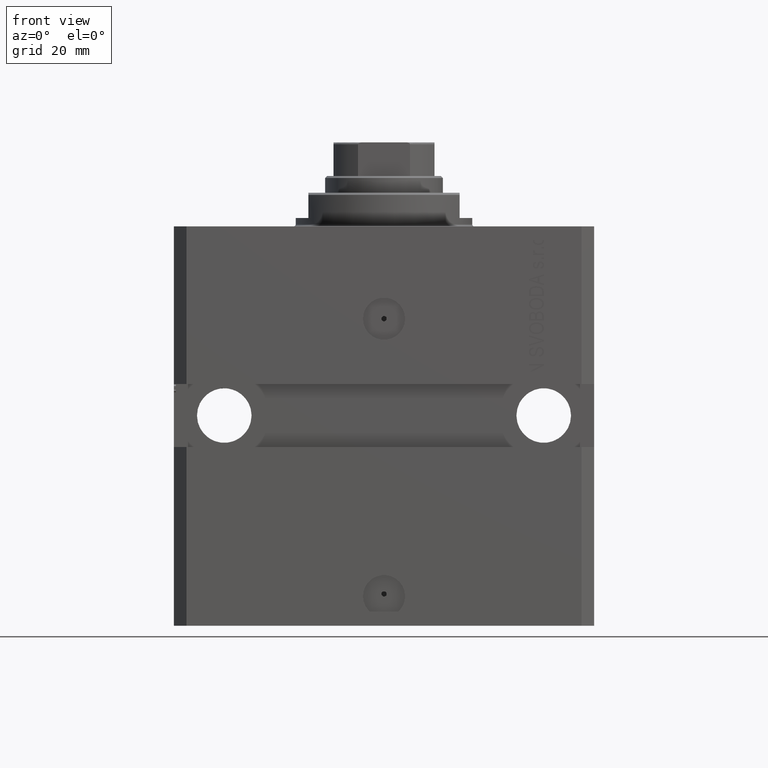
[diagram: clean part render]
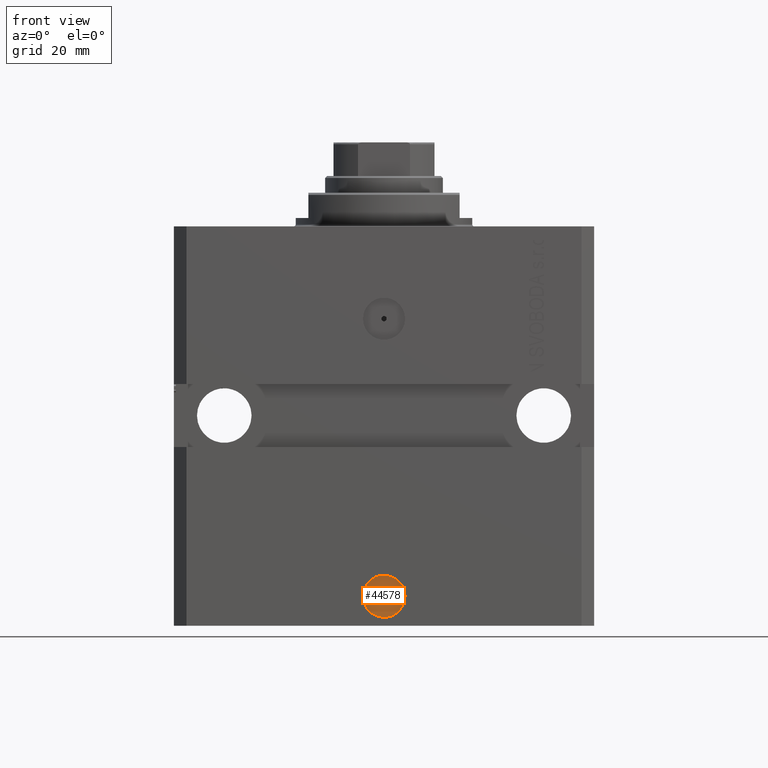
[diagram: same view with one face highlighted and labeled with its STEP entity id]
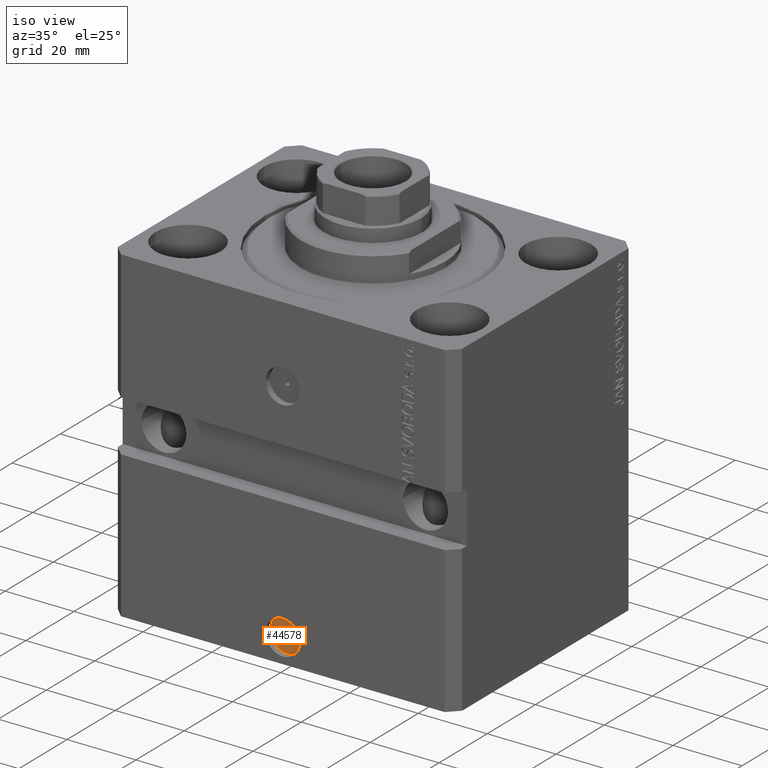
[diagram: same view with one face highlighted and labeled with its STEP entity id]
A machine part, front view. The second image highlights one B-rep face of the part: STEP entity #44578.
A second angle (iso view) of the same face is appended — the face is thin or edge-on in the first view.
In plain terms, the highlighted planar face has unit normal (0, -1, 0).
Its self-contained STEP definition (entity closure, byte-faithful):
#2720 = CIRCLE ( 'NONE', #44271, 5.000000000000006217 ) ;
#3203 = DIRECTION ( 'NONE',  ( 1.176083712526788232E-16, -1.000000000000000000, 0.000000000000000000 ) ) ;
#4207 = AXIS2_PLACEMENT_3D ( 'NONE', #4298, #27612, #7892 ) ;
#4298 = CARTESIAN_POINT ( 'NONE',  ( 4.186858016595366184E-15, -35.60000000000000142, -87.47499999999999432 ) ) ;
#4529 = ORIENTED_EDGE ( 'NONE', *, *, #7366, .F. ) ;
#4759 = DIRECTION ( 'NONE',  ( 1.176083712526788232E-16, -1.000000000000000000, 0.000000000000000000 ) ) ;
#5930 = CARTESIAN_POINT ( 'NONE',  ( -0.6249999999999994449, -35.60000000000000142, -87.47499999999999432 ) ) ;
#7366 = EDGE_CURVE ( 'NONE', #34673, #14895, #36510, .T. ) ;
#7892 = DIRECTION ( 'NONE',  ( 1.000000000000000000, 0.000000000000000000, 0.000000000000000000 ) ) ;
#8125 = VERTEX_POINT ( 'NONE', #18770 ) ;
#10731 = DIRECTION ( 'NONE',  ( 1.176083712526788232E-16, -1.000000000000000000, 0.000000000000000000 ) ) ;
#11342 = VERTEX_POINT ( 'NONE', #23480 ) ;
#12232 = FACE_BOUND ( 'NONE', #35993, .T. ) ;
#12689 = CARTESIAN_POINT ( 'NONE',  ( 0.6250000000000078826, -35.60000000000000142, -87.47499999999999432 ) ) ;
#12710 = CARTESIAN_POINT ( 'NONE',  ( -5.759807424455006450E-15, -35.60000000000000142, -88.00000000000000000 ) ) ;
#14895 = VERTEX_POINT ( 'NONE', #12689 ) ;
#15587 = EDGE_CURVE ( 'NONE', #8125, #11342, #21585, .T. ) ;
#18770 = CARTESIAN_POINT ( 'NONE',  ( -5.000000000000012434, -35.60000000000000142, -88.00000000000000000 ) ) ;
#19402 = ORIENTED_EDGE ( 'NONE', *, *, #15587, .T. ) ;
#21438 = ORIENTED_EDGE ( 'NONE', *, *, #46769, .T. ) ;
#21585 = CIRCLE ( 'NONE', #29300, 5.000000000000006217 ) ;
#23480 = CARTESIAN_POINT ( 'NONE',  ( 5.000000000000000000, -35.60000000000000142, -88.00000000000000000 ) ) ;
#24971 = CARTESIAN_POINT ( 'NONE',  ( 4.186858016595366184E-15, -35.60000000000000142, -87.47499999999999432 ) ) ;
#26938 = FACE_OUTER_BOUND ( 'NONE', #30249, .T. ) ;
#27612 = DIRECTION ( 'NONE',  ( 1.176083712526788232E-16, -1.000000000000000000, 0.000000000000000000 ) ) ;
#29300 = AXIS2_PLACEMENT_3D ( 'NONE', #42587, #38257, #38732 ) ;
#30249 = EDGE_LOOP ( 'NONE', ( #21438, #19402 ) ) ;
#30509 = ORIENTED_EDGE ( 'NONE', *, *, #35536, .F. ) ;
#34673 = VERTEX_POINT ( 'NONE', #5930 ) ;
#35038 = AXIS2_PLACEMENT_3D ( 'NONE', #24971, #10731, #39666 ) ;
#35536 = EDGE_CURVE ( 'NONE', #14895, #34673, #46606, .T. ) ;
#35993 = EDGE_LOOP ( 'NONE', ( #30509, #4529 ) ) ;
#36510 = CIRCLE ( 'NONE', #4207, 0.6250000000000036637 ) ;
#37999 = PLANE ( 'NONE',  #40452 ) ;
#38257 = DIRECTION ( 'NONE',  ( 1.176083712526788232E-16, -1.000000000000000000, 0.000000000000000000 ) ) ;
#38732 = DIRECTION ( 'NONE',  ( 1.000000000000000000, 0.000000000000000000, 0.000000000000000000 ) ) ;
#39602 = DIRECTION ( 'NONE',  ( 1.000000000000000000, 0.000000000000000000, 0.000000000000000000 ) ) ;
#39666 = DIRECTION ( 'NONE',  ( 1.000000000000000000, 0.000000000000000000, 0.000000000000000000 ) ) ;
#40452 = AXIS2_PLACEMENT_3D ( 'NONE', #12710, #4759, #41866 ) ;
#41866 = DIRECTION ( 'NONE',  ( 1.000000000000000000, 1.176083712526788232E-16, 0.000000000000000000 ) ) ;
#42587 = CARTESIAN_POINT ( 'NONE',  ( -5.759807424455006450E-15, -35.60000000000000142, -88.00000000000000000 ) ) ;
#43935 = CARTESIAN_POINT ( 'NONE',  ( -5.759807424455006450E-15, -35.60000000000000142, -88.00000000000000000 ) ) ;
#44271 = AXIS2_PLACEMENT_3D ( 'NONE', #43935, #3203, #39602 ) ;
#44578 = ADVANCED_FACE ( 'NONE', ( #12232, #26938 ), #37999, .T. ) ;
#46606 = CIRCLE ( 'NONE', #35038, 0.6250000000000036637 ) ;
#46769 = EDGE_CURVE ( 'NONE', #11342, #8125, #2720, .T. ) ;